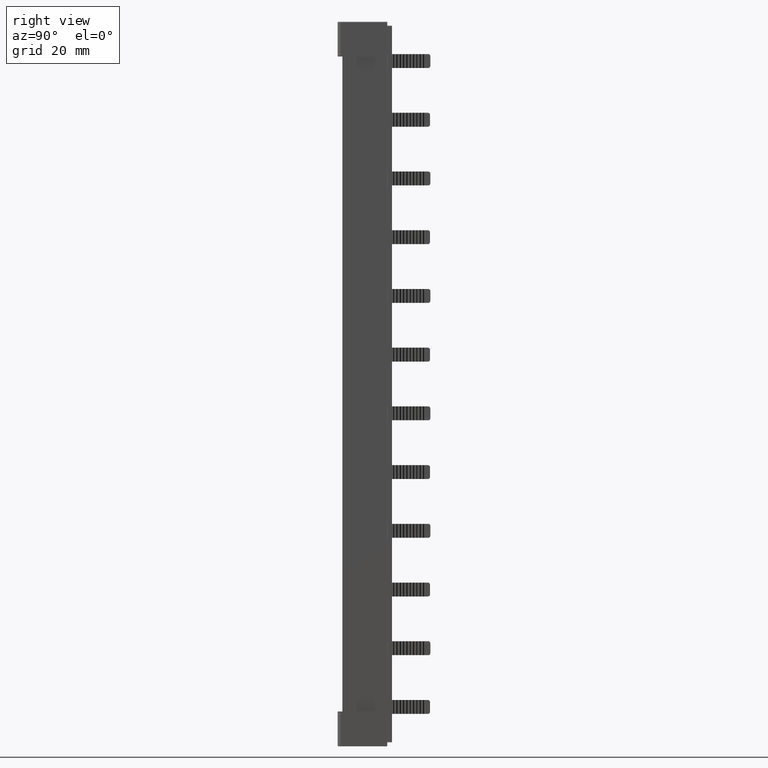
[diagram: clean part render]
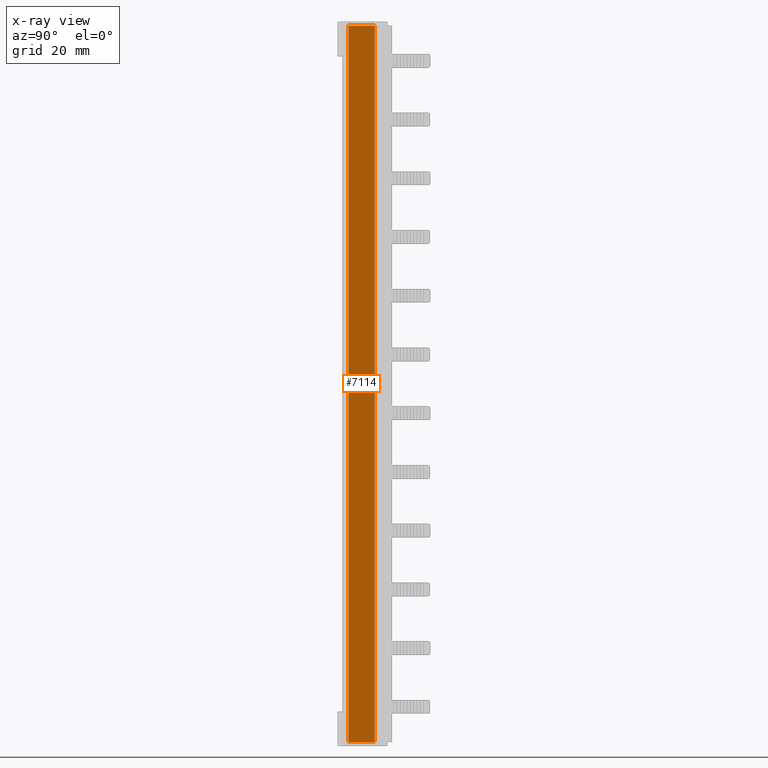
[diagram: x-ray — body ghosted, one internal face saturated and labeled with its STEP entity id]
A machine part, right view, then the same camera in x-ray: the body is ghosted and one INTERNAL B-rep face — a face not visible from any outside direction — is saturated and labeled: STEP entity #7114.
In plain terms, the highlighted planar face has unit normal (-1, 0, 0).
Its self-contained STEP definition (entity closure, byte-faithful):
#170 = EDGE_CURVE ( 'NONE', #14185, #14152, #14888, .T. ) ;
#179 = EDGE_CURVE ( 'NONE', #14185, #14168, #14942, .T. ) ;
#187 = EDGE_CURVE ( 'NONE', #14213, #14168, #15000, .T. ) ;
#189 = EDGE_CURVE ( 'NONE', #14213, #14152, #14997, .T. ) ;
#3811 = PLANE ( 'NONE',  #12300 ) ;
#3813 = CARTESIAN_POINT ( 'NONE',  ( 5.599999999999383200, 1.799999999999940500, 217.7999999999999800 ) ) ;
#3818 = DIRECTION ( 'NONE',  ( -1.000000000000000000, 0.0000000000000000000, 0.0000000000000000000 ) ) ;
#3836 = FACE_OUTER_BOUND ( 'NONE', #8679, .T. ) ;
#3846 = DIRECTION ( 'NONE',  ( 0.0000000000000000000, 0.0000000000000000000, 1.000000000000000000 ) ) ;
#7114 = ADVANCED_FACE ( 'NONE', ( #3836 ), #3811, .T. ) ;
#8679 = EDGE_LOOP ( 'NONE', ( #11517, #11555, #11545, #11562 ) ) ;
#10487 = VECTOR ( 'NONE', #14967, 1000.000000000000000 ) ;
#10497 = VECTOR ( 'NONE', #14986, 1000.000000000000000 ) ;
#10514 = VECTOR ( 'NONE', #14961, 1000.000000000000000 ) ;
#10529 = VECTOR ( 'NONE', #14995, 1000.000000000000000 ) ;
#11517 = ORIENTED_EDGE ( 'NONE', *, *, #179, .T. ) ;
#11545 = ORIENTED_EDGE ( 'NONE', *, *, #189, .T. ) ;
#11555 = ORIENTED_EDGE ( 'NONE', *, *, #187, .F. ) ;
#11562 = ORIENTED_EDGE ( 'NONE', *, *, #170, .F. ) ;
#12300 = AXIS2_PLACEMENT_3D ( 'NONE', #3813, #3818, #3846 ) ;
#14152 = VERTEX_POINT ( 'NONE', #22012 ) ;
#14168 = VERTEX_POINT ( 'NONE', #22055 ) ;
#14185 = VERTEX_POINT ( 'NONE', #22030 ) ;
#14213 = VERTEX_POINT ( 'NONE', #22010 ) ;
#14888 = LINE ( 'NONE', #14934, #10487 ) ;
#14934 = CARTESIAN_POINT ( 'NONE',  ( 5.599999999999383200, 9.799999999999947400, 217.7999999999999800 ) ) ;
#14942 = LINE ( 'NONE', #14970, #10514 ) ;
#14961 = DIRECTION ( 'NONE',  ( -0.0000000000000000000, -1.000000000000000000, -0.0000000000000000000 ) ) ;
#14967 = DIRECTION ( 'NONE',  ( -0.0000000000000000000, 0.0000000000000000000, 1.000000000000000000 ) ) ;
#14970 = CARTESIAN_POINT ( 'NONE',  ( 5.599999999999383200, 0.4000000000001606700, 1.200000000003876600 ) ) ;
#14986 = DIRECTION ( 'NONE',  ( 0.0000000000000000000, 1.000000000000000000, 0.0000000000000000000 ) ) ;
#14991 = CARTESIAN_POINT ( 'NONE',  ( 5.599999999999383200, 0.4000000000001606700, 217.7999999999961500 ) ) ;
#14994 = CARTESIAN_POINT ( 'NONE',  ( 5.599999999999383200, 1.799999999999940500, 217.7999999999999800 ) ) ;
#14995 = DIRECTION ( 'NONE',  ( -0.0000000000000000000, 0.0000000000000000000, -1.000000000000000000 ) ) ;
#14997 = LINE ( 'NONE', #14991, #10497 ) ;
#15000 = LINE ( 'NONE', #14994, #10529 ) ;
#22010 = CARTESIAN_POINT ( 'NONE',  ( 5.599999999999383200, 1.799999999999940500, 217.7999999999966600 ) ) ;
#22012 = CARTESIAN_POINT ( 'NONE',  ( 5.599999999999383200, 9.799999999999947400, 217.7999999999963700 ) ) ;
#22030 = CARTESIAN_POINT ( 'NONE',  ( 5.599999999999383200, 9.799999999999947400, 1.200000000003211600 ) ) ;
#22055 = CARTESIAN_POINT ( 'NONE',  ( 5.599999999999383200, 1.799999999999940500, 1.200000000003257100 ) ) ;